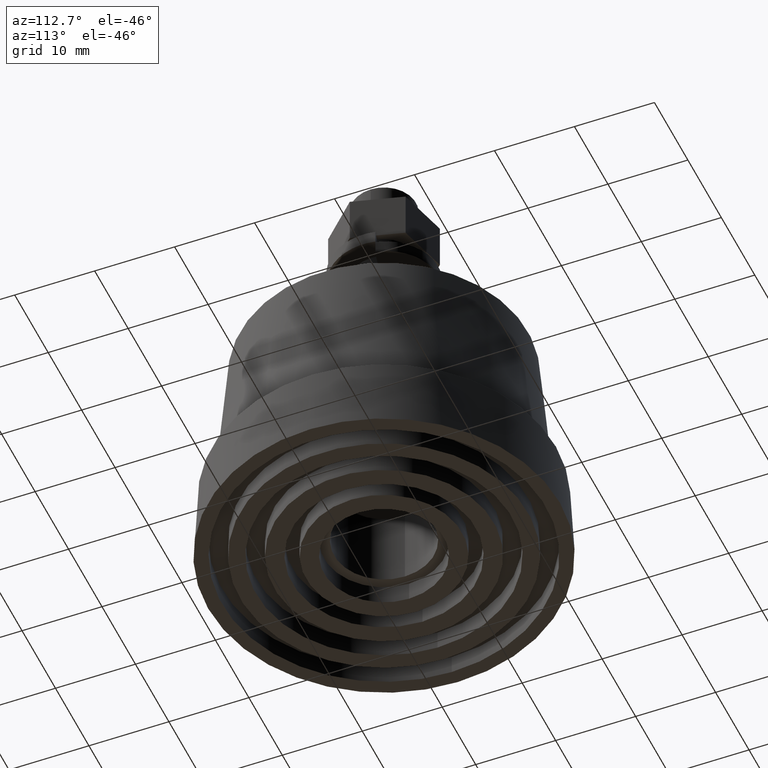
[diagram: clean part render]
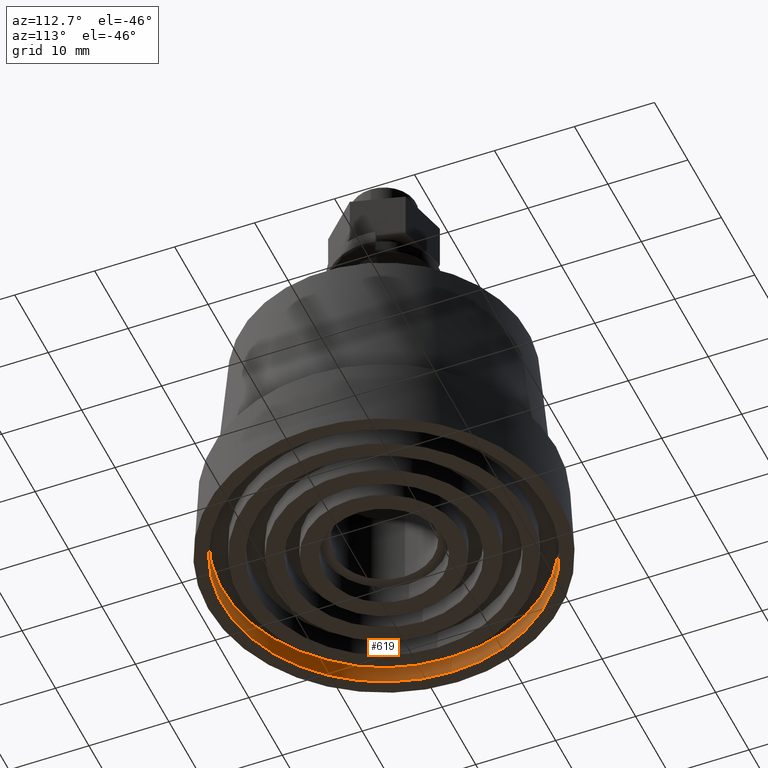
[diagram: same view with one face highlighted and labeled with its STEP entity id]
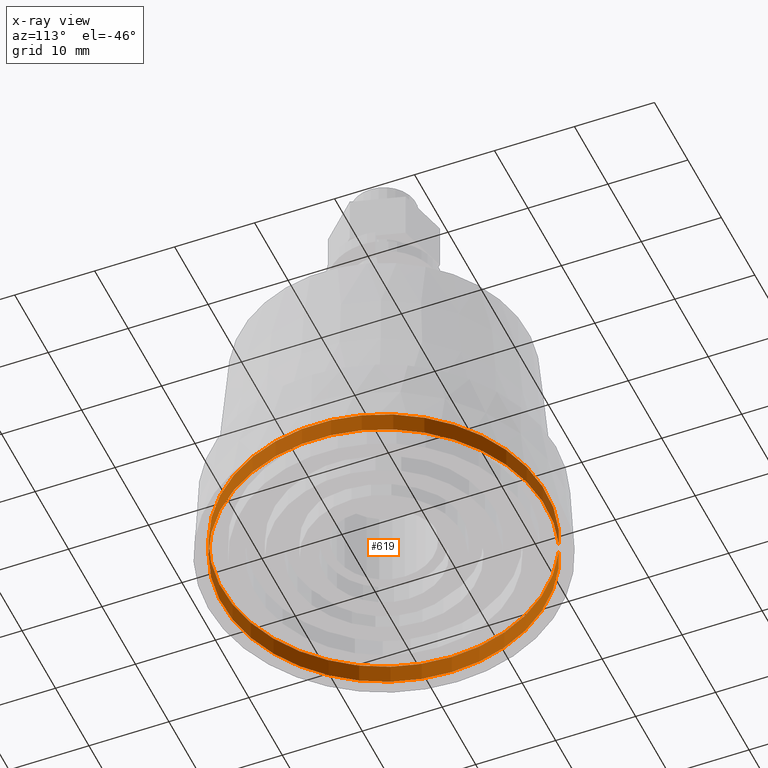
[diagram: x-ray of the same camera — body ghosted, the highlighted face saturated]
A machine part, auxiliary view. The second image highlights one B-rep face of the part: STEP entity #619.
The next image is the same camera in x-ray: the body ghosted, the highlighted face saturated — about 0% of this face is hidden behind the body in this view.
In plain terms, the highlighted cylindrical surface (bore or boss wall) has radius 20.25 mm, axis along (0, 0, -1).
Its self-contained STEP definition (entity closure, byte-faithful):
#138=FACE_BOUND('',#241,.T.);
#176=FACE_OUTER_BOUND('',#240,.T.);
#240=EDGE_LOOP('',(#484));
#241=EDGE_LOOP('',(#485));
#311=CIRCLE('',#687,20.25);
#314=CIRCLE('',#692,20.25);
#347=VERTEX_POINT('',#1001);
#350=VERTEX_POINT('',#1009);
#403=EDGE_CURVE('',#347,#347,#311,.T.);
#406=EDGE_CURVE('',#350,#350,#314,.T.);
#484=ORIENTED_EDGE('',*,*,#406,.F.);
#485=ORIENTED_EDGE('',*,*,#403,.T.);
#594=CYLINDRICAL_SURFACE('',#691,20.25);
#619=ADVANCED_FACE('',(#176,#138),#594,.F.);
#687=AXIS2_PLACEMENT_3D('',#1002,#809,#810);
#691=AXIS2_PLACEMENT_3D('',#1008,#817,#818);
#692=AXIS2_PLACEMENT_3D('',#1010,#819,#820);
#809=DIRECTION('center_axis',(0.,0.,1.));
#810=DIRECTION('ref_axis',(1.,0.,0.));
#817=DIRECTION('center_axis',(0.,0.,-1.));
#818=DIRECTION('ref_axis',(1.,0.,0.));
#819=DIRECTION('center_axis',(0.,0.,1.));
#820=DIRECTION('ref_axis',(1.,0.,0.));
#1001=CARTESIAN_POINT('',(-20.25,-2.47990976827339E-15,2.5));
#1002=CARTESIAN_POINT('Origin',(0.,0.,2.5));
#1008=CARTESIAN_POINT('Origin',(0.,0.,69.0796641566822));
#1009=CARTESIAN_POINT('',(-20.25,2.47990976827339E-15,0.));
#1010=CARTESIAN_POINT('Origin',(0.,0.,0.));